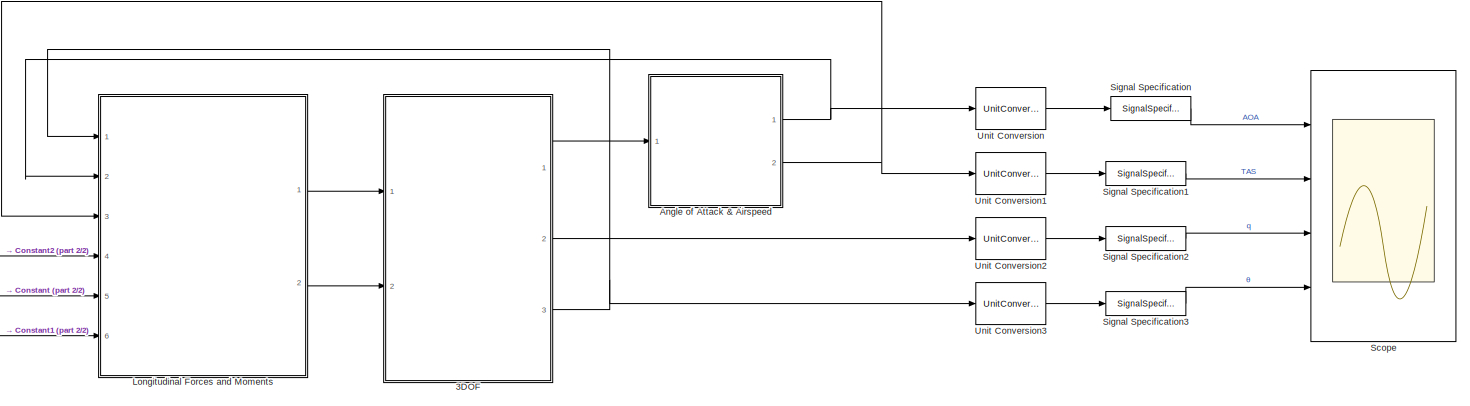
[diagram: root canvas - part 1/2, most of the canvas]
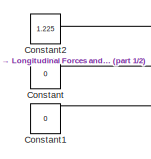
[diagram: root canvas - part 2/2, bottom left region]
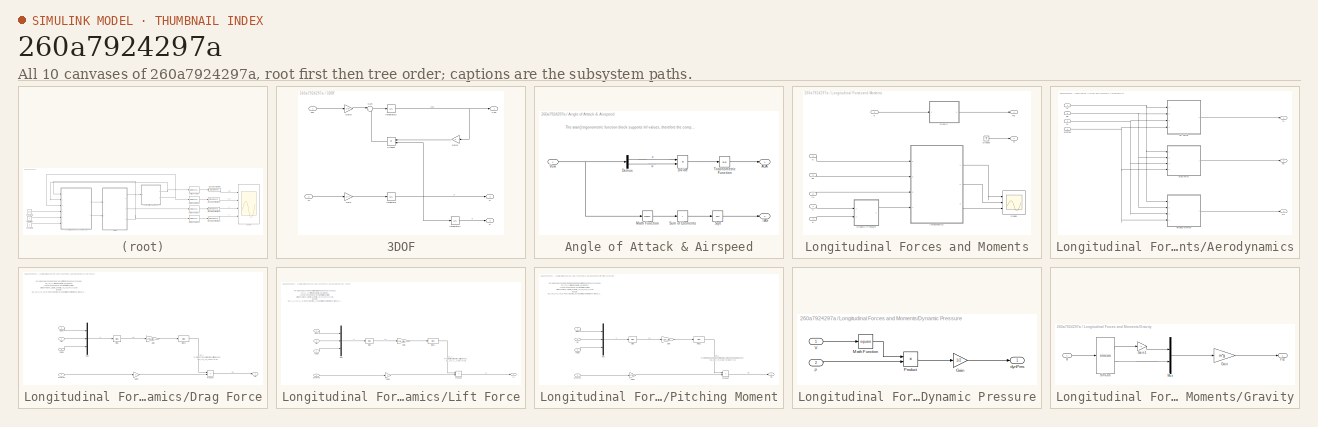
[diagram: thumbnail index - all 10 canvases of the model, root first then tree order]
MODEL slx_260a7924297a
KIND model
CONFIG AbsTol = auto
CONFIG EnableMultiTasking = off
CONFIG FixedStep = auto
CONFIG MaxStep = auto
CONFIG MinStep = auto
CONFIG RelTol = 1e-3
CONFIG SampleTimeConstraint = Unconstrained
CONFIG SolverName = VariableStepAuto
CONFIG StartTime = 0.0
CONFIG StopTime = 10.0
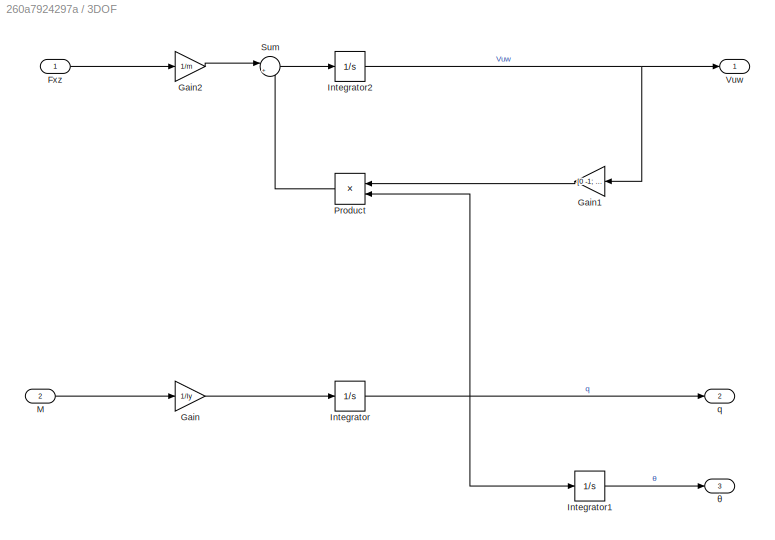
BLOCK [SubSystem] 3DOF
  Ports = [2, 3]
  RequestExecContextInheritance = off
BLOCK [Inport] 3DOF/Fxz
  Unit = N
BLOCK [Gain] 3DOF/Gain
  Gain = 1/Iy
BLOCK [Gain] 3DOF/Gain1
  AttributesFormatString = K = %<Gain>
  Gain = [0 -1; 1 0]
  Multiplication = Matrix(K*u)
  NameLocation = top
BLOCK [Gain] 3DOF/Gain2
  Gain = 1/m
BLOCK [Integrator] 3DOF/Integrator
  Ports = [1, 1]
BLOCK [Integrator] 3DOF/Integrator1
  InitialCondition = theta0
  Ports = [1, 1]
BLOCK [Integrator] 3DOF/Integrator2
  InitialCondition = [u0 w0]
  Ports = [1, 1]
BLOCK [Inport] 3DOF/M
  Port = 2
  Unit = N*m
BLOCK [Product] 3DOF/Product
  NameLocation = top
  Ports = [2, 1]
BLOCK [Sum] 3DOF/Sum
  Inputs = |++
  Ports = [2, 1]
BLOCK [Outport] 3DOF/Vuw
  Unit = m/s
BLOCK [Outport] 3DOF/q
  Port = 2
  Unit = rad/s
BLOCK [Outport] 3DOF/θ
  Port = 3
  Unit = rad
BLOCK [SubSystem] Angle of Attack & Airspeed
  Ports = [1, 2]
  RequestExecContextInheritance = off
BLOCK [Outport] Angle of Attack & Airspeed/AOA
  Unit = rad
BLOCK [Demux] Angle of Attack & Airspeed/Demux
  Outputs = 2
  Ports = [1, 2]
BLOCK [Product] Angle of Attack & Airspeed/Divide
  Inputs = /*
  Ports = [2, 1]
BLOCK [Math] Angle of Attack & Airspeed/Math Function
  Operator = square
  Ports = [1, 1]
BLOCK [Sqrt] Angle of Attack & Airspeed/Sqrt
BLOCK [Sum] Angle of Attack & Airspeed/Sum of Elements
  IconShape = rectangular
  Inputs = +
  Ports = [1, 1]
BLOCK [Outport] Angle of Attack & Airspeed/TAS
  Port = 2
  Unit = m/s
BLOCK [Trigonometry] Angle of Attack & Airspeed/Trigonometric Function
  Operator = atan
  Ports = [1, 1]
BLOCK [Inport] Angle of Attack & Airspeed/Vuw
  Unit = m/s
BLOCK [Constant] Constant
  Value = 0
BLOCK [Constant] Constant1
  Value = 0
BLOCK [Constant] Constant2
  Value = 1.225
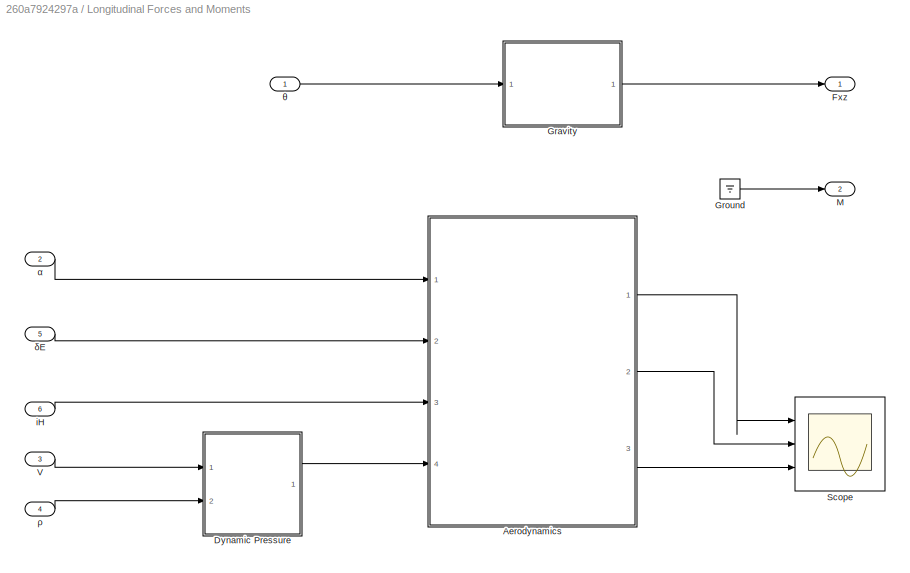
BLOCK [SubSystem] Longitudinal Forces and Moments
  Ports = [6, 2]
  RequestExecContextInheritance = off
BLOCK [SubSystem] Longitudinal Forces and Moments/Aerodynamics
  Ports = [4, 3]
  RequestExecContextInheritance = off
BLOCK [Outport] Longitudinal Forces and Moments/Aerodynamics/D1
  Port = 2
BLOCK [SubSystem] Longitudinal Forces and Moments/Aerodynamics/Drag Force
  Ports = [4, 1]
  RequestExecContextInheritance = off
BLOCK [Bias] Longitudinal Forces and Moments/Aerodynamics/Drag Force/Bias
  AttributesFormatString = b = %<Bias>
  Bias = -[alpha0, elv0, hstab0]
  SaturateOnIntegerOverflow = off
BLOCK [Bias] Longitudinal Forces and Moments/Aerodynamics/Drag Force/Bias1
  Bias = CD_0
  SaturateOnIntegerOverflow = off
BLOCK [Outport] Longitudinal Forces and Moments/Aerodynamics/Drag Force/D1
BLOCK [Gain] Longitudinal Forces and Moments/Aerodynamics/Drag Force/Gain
  AttributesFormatString = K = %<Gain>
  Gain = [CD_alpha, CD_elv, CD_hstab]
  Multiplication = Matrix(K*u) (u vector)
BLOCK [Gain] Longitudinal Forces and Moments/Aerodynamics/Drag Force/Gain1
  Gain = S
BLOCK [Mux] Longitudinal Forces and Moments/Aerodynamics/Drag Force/Mux
  DisplayOption = bar
  Inputs = 3
  Ports = [3, 1]
BLOCK [Product] Longitudinal Forces and Moments/Aerodynamics/Drag Force/Product
  Ports = [2, 1]
BLOCK [Inport] Longitudinal Forces and Moments/Aerodynamics/Drag Force/alpha
BLOCK [Inport] Longitudinal Forces and Moments/Aerodynamics/Drag Force/dynPres
  Port = 4
BLOCK [Inport] Longitudinal Forces and Moments/Aerodynamics/Drag Force/elv
  Port = 2
BLOCK [Inport] Longitudinal Forces and Moments/Aerodynamics/Drag Force/hstab
  Port = 3
BLOCK [Outport] Longitudinal Forces and Moments/Aerodynamics/L1
BLOCK [SubSystem] Longitudinal Forces and Moments/Aerodynamics/Lift Force
  Ports = [4, 1]
  RequestExecContextInheritance = off
BLOCK [Bias] Longitudinal Forces and Moments/Aerodynamics/Lift Force/Bias
  AttributesFormatString = b = %<Bias>
  Bias = -[alpha0, elv0, hstab0]
  SaturateOnIntegerOverflow = off
BLOCK [Bias] Longitudinal Forces and Moments/Aerodynamics/Lift Force/Bias1
  Bias = CL_0
  SaturateOnIntegerOverflow = off
BLOCK [Gain] Longitudinal Forces and Moments/Aerodynamics/Lift Force/Gain
  AttributesFormatString = K = %<Gain>
  Gain = [CL_alpha, CL_elv, CL_hstab]
  Multiplication = Matrix(K*u) (u vector)
BLOCK [Gain] Longitudinal Forces and Moments/Aerodynamics/Lift Force/Gain1
  Gain = S
BLOCK [Outport] Longitudinal Forces and Moments/Aerodynamics/Lift Force/L1
BLOCK [Mux] Longitudinal Forces and Moments/Aerodynamics/Lift Force/Mux
  DisplayOption = bar
  Inputs = 3
  Ports = [3, 1]
BLOCK [Product] Longitudinal Forces and Moments/Aerodynamics/Lift Force/Product
  Ports = [2, 1]
BLOCK [Inport] Longitudinal Forces and Moments/Aerodynamics/Lift Force/alpha
BLOCK [Inport] Longitudinal Forces and Moments/Aerodynamics/Lift Force/dynPres
  Port = 4
BLOCK [Inport] Longitudinal Forces and Moments/Aerodynamics/Lift Force/elv
  Port = 2
BLOCK [Inport] Longitudinal Forces and Moments/Aerodynamics/Lift Force/hstab
  Port = 3
BLOCK [Outport] Longitudinal Forces and Moments/Aerodynamics/M1
  Port = 3
BLOCK [SubSystem] Longitudinal Forces and Moments/Aerodynamics/Pitching Moment
  Ports = [4, 1]
  RequestExecContextInheritance = off
BLOCK [Bias] Longitudinal Forces and Moments/Aerodynamics/Pitching Moment/Bias
  AttributesFormatString = b = %<Bias>
  Bias = -[alpha0, elv0, hstab0]
  SaturateOnIntegerOverflow = off
BLOCK [Bias] Longitudinal Forces and Moments/Aerodynamics/Pitching Moment/Bias1
  Bias = Cm_0
  SaturateOnIntegerOverflow = off
BLOCK [Gain] Longitudinal Forces and Moments/Aerodynamics/Pitching Moment/Gain
  AttributesFormatString = K = %<Gain>
  Gain = [Cm_alpha, Cm_elv, Cm_hstab]
  Multiplication = Matrix(K*u) (u vector)
BLOCK [Gain] Longitudinal Forces and Moments/Aerodynamics/Pitching Moment/Gain1
  AttributesFormatString = K = %<Gain>
  Gain = S*mac
BLOCK [Outport] Longitudinal Forces and Moments/Aerodynamics/Pitching Moment/M1
BLOCK [Mux] Longitudinal Forces and Moments/Aerodynamics/Pitching Moment/Mux
  DisplayOption = bar
  Inputs = 3
  Ports = [3, 1]
BLOCK [Product] Longitudinal Forces and Moments/Aerodynamics/Pitching Moment/Product
  Ports = [2, 1]
BLOCK [Inport] Longitudinal Forces and Moments/Aerodynamics/Pitching Moment/alpha
BLOCK [Inport] Longitudinal Forces and Moments/Aerodynamics/Pitching Moment/dynPres
  Port = 4
BLOCK [Inport] Longitudinal Forces and Moments/Aerodynamics/Pitching Moment/elv
  Port = 2
BLOCK [Inport] Longitudinal Forces and Moments/Aerodynamics/Pitching Moment/hstab
  Port = 3
BLOCK [Inport] Longitudinal Forces and Moments/Aerodynamics/dynPres
  Port = 4
BLOCK [Inport] Longitudinal Forces and Moments/Aerodynamics/iH
  Port = 3
BLOCK [Inport] Longitudinal Forces and Moments/Aerodynamics/α
BLOCK [Inport] Longitudinal Forces and Moments/Aerodynamics/δE
  Port = 2
BLOCK [SubSystem] Longitudinal Forces and Moments/Dynamic Pressure
  Ports = [2, 1]
  RequestExecContextInheritance = off
BLOCK [Gain] Longitudinal Forces and Moments/Dynamic Pressure/Gain
  Gain = 1/2
BLOCK [Math] Longitudinal Forces and Moments/Dynamic Pressure/Math Function
  Operator = square
  Ports = [1, 1]
BLOCK [Product] Longitudinal Forces and Moments/Dynamic Pressure/Product
  Ports = [2, 1]
BLOCK [Inport] Longitudinal Forces and Moments/Dynamic Pressure/V
BLOCK [Outport] Longitudinal Forces and Moments/Dynamic Pressure/dynPres
BLOCK [Inport] Longitudinal Forces and Moments/Dynamic Pressure/ρ
  Port = 2
BLOCK [Outport] Longitudinal Forces and Moments/Fxz
  Unit = N
BLOCK [SubSystem] Longitudinal Forces and Moments/Gravity
  Ports = [1, 1]
  RequestExecContextInheritance = off
BLOCK [Outport] Longitudinal Forces and Moments/Gravity/Fxz
BLOCK [Gain] Longitudinal Forces and Moments/Gravity/Gain
  Gain = m*g
BLOCK [Gain] Longitudinal Forces and Moments/Gravity/Gain1
  Gain = -1
BLOCK [Mux] Longitudinal Forces and Moments/Gravity/Mux
  DisplayOption = bar
  Inputs = 2
  Ports = [2, 1]
BLOCK [Trigonometry] Longitudinal Forces and Moments/Gravity/SinCos
  Operator = sincos
  Ports = [1, 2]
BLOCK [Inport] Longitudinal Forces and Moments/Gravity/θ
BLOCK [Ground] Longitudinal Forces and Moments/Ground
BLOCK [Outport] Longitudinal Forces and Moments/M
  Port = 2
  Unit = N*m
BLOCK [Scope] Longitudinal Forces and Moments/Scope
  Floating = off
  NumInputPorts = 3
  Ports = [3]
  ScopeSpecificationString = Simulink.scopes.TimeScopeBlockCfg('CurrentConfiguration', extmgr.ConfigurationSet(extmgr.Configuration('Core','General UI',true),extmgr.Configuration('Core','Source UI',true),extmgr.Configuration('Sources','WiredSimulink',true,'DataLoggingVariableName','ScopeData1'),extmgr.Configuration('Visuals','Time Domain',true,'SerializedDisplays',{struct('MinYLimReal','-150938.94276','MaxYLimReal','2082910.5...<+1991ch>
BLOCK [Inport] Longitudinal Forces and Moments/V
  Port = 3
  Unit = m/s
BLOCK [Inport] Longitudinal Forces and Moments/iH
  Port = 6
  Unit = rad
BLOCK [Inport] Longitudinal Forces and Moments/α
  Port = 2
  Unit = rad
BLOCK [Inport] Longitudinal Forces and Moments/δE
  Port = 5
  Unit = rad
BLOCK [Inport] Longitudinal Forces and Moments/θ
  Unit = rad
BLOCK [Inport] Longitudinal Forces and Moments/ρ
  Port = 4
  Unit = kg/m^3
BLOCK [Scope] Scope
  Floating = off
  NumInputPorts = 4
  Ports = [4]
  ScopeSpecificationString = Simulink.scopes.TimeScopeBlockCfg('CurrentConfiguration', extmgr.ConfigurationSet(extmgr.Configuration('Core','General UI',true),extmgr.Configuration('Core','Source UI',true),extmgr.Configuration('Sources','WiredSimulink',true),extmgr.Configuration('Visuals','Time Domain',true,'SerializedDisplays',{struct('MinYLimReal','-0.47816','MaxYLimReal','31.30342','YLabelReal','','MinYLimMag','0.00000','Max...<+3637ch>
BLOCK [SignalSpecification] Signal Specification
  Unit = deg
BLOCK [SignalSpecification] Signal Specification1
  Unit = kn
BLOCK [SignalSpecification] Signal Specification2
  Unit = deg/s
BLOCK [SignalSpecification] Signal Specification3
  Unit = deg
BLOCK [UnitConversion] Unit Conversion
  OutputType = Inherit: Inherit via back propagation
BLOCK [UnitConversion] Unit Conversion1
  OutputType = Inherit: Inherit via back propagation
BLOCK [UnitConversion] Unit Conversion2
  OutputType = Inherit: Inherit via back propagation
BLOCK [UnitConversion] Unit Conversion3
ANNOTATION Angle of Attack & Airspeed: The atan() trigonometric function block supports Inf values, therefore the computed value for the angle of attack (AOA) will still be valid for zero longitudinal aircraft speed.
ANNOTATION Longitudinal Forces and Moments/Aerodynamics/Drag Force: For a given Mach number, the drag coefficient can be expressed as $C_{D_1} = f \left(\alpha, \delta_E, i_H \right)$ . A Taylor expansion around the initial condition $[\alpha=\alpha_0, \delta_E = \delta_{E_0}, i_H = i_{H_0}]$ leads to $C_{D_1} = C_{D_0}+\frac{\partial C_D}{\partial \alpha} \left( \alpha-\alpha_0 \right)+\frac{\partial C_D}{\partial \delta_E} \left( \delta_E-\delta_{E_0} \right)+\f...<+469ch>
ANNOTATION Longitudinal Forces and Moments/Aerodynamics/Drag Force: From the drag coefficient the A/C lift is given by: $D_1 = C_{D_1} \bar{q} S$
ANNOTATION Longitudinal Forces and Moments/Aerodynamics/Lift Force: For a given Mach number, the lift coefficient can be expressed as $C_{L_1} = f \left(\alpha, \delta_E, i_H \right)$ . A Taylor expansion around the initial condition $[\alpha=\alpha_0, \delta_E = \delta_{E_0}, i_H = i_{H_0}]$ leads to $C_{L_1} = C_{L_0}+\frac{\partial C_L}{\partial \alpha} \left( \alpha-\alpha_0 \right)+\frac{\partial C_L}{\partial \delta_E} \left( \delta_E-\delta_{E_0} \right)+\f...<+469ch>
ANNOTATION Longitudinal Forces and Moments/Aerodynamics/Lift Force: From the lift coefficient the A/C lift is given by: $L_1 = C_{L_1} \bar{q} S$
ANNOTATION Longitudinal Forces and Moments/Aerodynamics/Pitching Moment: For a given Mach number, the pitching moment coefficient can be expressed as $C_{m_1} = f \left(\alpha, \delta_E, i_H \right)$ . A Taylor expansion around the initial condition $[\alpha=\alpha_0, \delta_E = \delta_{E_0}, i_H = i_{H_0}]$ leads to $C_{m_1} = C_{m_0}+\frac{\partial C_m}{\partial \alpha} \left( \alpha-\alpha_0 \right)+\frac{\partial C_m}{\partial \delta_E} \left( \delta_E-\delta_{E_0}...<+524ch>
ANNOTATION Longitudinal Forces and Moments/Aerodynamics/Pitching Moment: From the pitching moment coefficient the A/C pitching moment is given by: $M_1 = C_{m_1} \bar{q} S \bar{c}$
LINE 3DOF/Fxz:1 -> 3DOF/Gain2:1
LINE 3DOF/Gain1:1 -> 3DOF/Product:1
LINE 3DOF/Gain2:1 -> 3DOF/Sum:1
LINE 3DOF/Gain:1 -> 3DOF/Integrator:1
LINE 3DOF/Integrator1:1 -> 3DOF/θ:1
NET 3DOF/Integrator2:1 -> 3DOF/Gain1:1, 3DOF/Vuw:1
NET 3DOF/Integrator:1 -> 3DOF/Integrator1:1, 3DOF/Product:2, 3DOF/q:1
LINE 3DOF/M:1 -> 3DOF/Gain:1
LINE 3DOF/Product:1 -> 3DOF/Sum:2
LINE 3DOF/Sum:1 -> 3DOF/Integrator2:1
LINE 3DOF:1 -> Angle of Attack & Airspeed:1
LINE 3DOF:2 -> Unit Conversion2:1
NET 3DOF:3 -> Longitudinal Forces and Moments:1, Unit Conversion3:1
LINE Angle of Attack & Airspeed/Demux:1 -> Angle of Attack & Airspeed/Divide:1
LINE Angle of Attack & Airspeed/Demux:2 -> Angle of Attack & Airspeed/Divide:2
LINE Angle of Attack & Airspeed/Divide:1 -> Angle of Attack & Airspeed/Trigonometric Function:1
LINE Angle of Attack & Airspeed/Math Function:1 -> Angle of Attack & Airspeed/Sum of Elements:1
LINE Angle of Attack & Airspeed/Sqrt:1 -> Angle of Attack & Airspeed/TAS:1
LINE Angle of Attack & Airspeed/Sum of Elements:1 -> Angle of Attack & Airspeed/Sqrt:1
LINE Angle of Attack & Airspeed/Trigonometric Function:1 -> Angle of Attack & Airspeed/AOA:1
NET Angle of Attack & Airspeed/Vuw:1 -> Angle of Attack & Airspeed/Demux:1, Angle of Attack & Airspeed/Math Function:1
NET Angle of Attack & Airspeed:1 -> Longitudinal Forces and Moments:2, Unit Conversion:1
NET Angle of Attack & Airspeed:2 -> Longitudinal Forces and Moments:3, Unit Conversion1:1
LINE Constant1:1 -> Longitudinal Forces and Moments:6
LINE Constant2:1 -> Longitudinal Forces and Moments:4
LINE Constant:1 -> Longitudinal Forces and Moments:5
LINE Longitudinal Forces and Moments/Aerodynamics/Drag Force/Bias1:1 -> Longitudinal Forces and Moments/Aerodynamics/Drag Force/Product:1
LINE Longitudinal Forces and Moments/Aerodynamics/Drag Force/Bias:1 -> Longitudinal Forces and Moments/Aerodynamics/Drag Force/Gain:1
LINE Longitudinal Forces and Moments/Aerodynamics/Drag Force/Gain1:1 -> Longitudinal Forces and Moments/Aerodynamics/Drag Force/Product:2
LINE Longitudinal Forces and Moments/Aerodynamics/Drag Force/Gain:1 -> Longitudinal Forces and Moments/Aerodynamics/Drag Force/Bias1:1
LINE Longitudinal Forces and Moments/Aerodynamics/Drag Force/Mux:1 -> Longitudinal Forces and Moments/Aerodynamics/Drag Force/Bias:1
LINE Longitudinal Forces and Moments/Aerodynamics/Drag Force/Product:1 -> Longitudinal Forces and Moments/Aerodynamics/Drag Force/D1:1
LINE Longitudinal Forces and Moments/Aerodynamics/Drag Force/alpha:1 -> Longitudinal Forces and Moments/Aerodynamics/Drag Force/Mux:1
LINE Longitudinal Forces and Moments/Aerodynamics/Drag Force/dynPres:1 -> Longitudinal Forces and Moments/Aerodynamics/Drag Force/Gain1:1
LINE Longitudinal Forces and Moments/Aerodynamics/Drag Force/elv:1 -> Longitudinal Forces and Moments/Aerodynamics/Drag Force/Mux:2
LINE Longitudinal Forces and Moments/Aerodynamics/Drag Force/hstab:1 -> Longitudinal Forces and Moments/Aerodynamics/Drag Force/Mux:3
LINE Longitudinal Forces and Moments/Aerodynamics/Drag Force:1 -> Longitudinal Forces and Moments/Aerodynamics/D1:1
LINE Longitudinal Forces and Moments/Aerodynamics/Lift Force/Bias1:1 -> Longitudinal Forces and Moments/Aerodynamics/Lift Force/Product:1
LINE Longitudinal Forces and Moments/Aerodynamics/Lift Force/Bias:1 -> Longitudinal Forces and Moments/Aerodynamics/Lift Force/Gain:1
LINE Longitudinal Forces and Moments/Aerodynamics/Lift Force/Gain1:1 -> Longitudinal Forces and Moments/Aerodynamics/Lift Force/Product:2
LINE Longitudinal Forces and Moments/Aerodynamics/Lift Force/Gain:1 -> Longitudinal Forces and Moments/Aerodynamics/Lift Force/Bias1:1
LINE Longitudinal Forces and Moments/Aerodynamics/Lift Force/Mux:1 -> Longitudinal Forces and Moments/Aerodynamics/Lift Force/Bias:1
LINE Longitudinal Forces and Moments/Aerodynamics/Lift Force/Product:1 -> Longitudinal Forces and Moments/Aerodynamics/Lift Force/L1:1
LINE Longitudinal Forces and Moments/Aerodynamics/Lift Force/alpha:1 -> Longitudinal Forces and Moments/Aerodynamics/Lift Force/Mux:1
LINE Longitudinal Forces and Moments/Aerodynamics/Lift Force/dynPres:1 -> Longitudinal Forces and Moments/Aerodynamics/Lift Force/Gain1:1
LINE Longitudinal Forces and Moments/Aerodynamics/Lift Force/elv:1 -> Longitudinal Forces and Moments/Aerodynamics/Lift Force/Mux:2
LINE Longitudinal Forces and Moments/Aerodynamics/Lift Force/hstab:1 -> Longitudinal Forces and Moments/Aerodynamics/Lift Force/Mux:3
LINE Longitudinal Forces and Moments/Aerodynamics/Lift Force:1 -> Longitudinal Forces and Moments/Aerodynamics/L1:1
LINE Longitudinal Forces and Moments/Aerodynamics/Pitching Moment/Bias1:1 -> Longitudinal Forces and Moments/Aerodynamics/Pitching Moment/Product:1
LINE Longitudinal Forces and Moments/Aerodynamics/Pitching Moment/Bias:1 -> Longitudinal Forces and Moments/Aerodynamics/Pitching Moment/Gain:1
LINE Longitudinal Forces and Moments/Aerodynamics/Pitching Moment/Gain1:1 -> Longitudinal Forces and Moments/Aerodynamics/Pitching Moment/Product:2
LINE Longitudinal Forces and Moments/Aerodynamics/Pitching Moment/Gain:1 -> Longitudinal Forces and Moments/Aerodynamics/Pitching Moment/Bias1:1
LINE Longitudinal Forces and Moments/Aerodynamics/Pitching Moment/Mux:1 -> Longitudinal Forces and Moments/Aerodynamics/Pitching Moment/Bias:1
LINE Longitudinal Forces and Moments/Aerodynamics/Pitching Moment/Product:1 -> Longitudinal Forces and Moments/Aerodynamics/Pitching Moment/M1:1
LINE Longitudinal Forces and Moments/Aerodynamics/Pitching Moment/alpha:1 -> Longitudinal Forces and Moments/Aerodynamics/Pitching Moment/Mux:1
LINE Longitudinal Forces and Moments/Aerodynamics/Pitching Moment/dynPres:1 -> Longitudinal Forces and Moments/Aerodynamics/Pitching Moment/Gain1:1
LINE Longitudinal Forces and Moments/Aerodynamics/Pitching Moment/elv:1 -> Longitudinal Forces and Moments/Aerodynamics/Pitching Moment/Mux:2
LINE Longitudinal Forces and Moments/Aerodynamics/Pitching Moment/hstab:1 -> Longitudinal Forces and Moments/Aerodynamics/Pitching Moment/Mux:3
LINE Longitudinal Forces and Moments/Aerodynamics/Pitching Moment:1 -> Longitudinal Forces and Moments/Aerodynamics/M1:1
NET Longitudinal Forces and Moments/Aerodynamics/dynPres:1 -> Longitudinal Forces and Moments/Aerodynamics/Drag Force:4, Longitudinal Forces and Moments/Aerodynamics/Lift Force:4, Longitudinal Forces and Moments/Aerodynamics/Pitching Moment:4
NET Longitudinal Forces and Moments/Aerodynamics/iH:1 -> Longitudinal Forces and Moments/Aerodynamics/Drag Force:3, Longitudinal Forces and Moments/Aerodynamics/Lift Force:3, Longitudinal Forces and Moments/Aerodynamics/Pitching Moment:3
NET Longitudinal Forces and Moments/Aerodynamics/α:1 -> Longitudinal Forces and Moments/Aerodynamics/Drag Force:1, Longitudinal Forces and Moments/Aerodynamics/Lift Force:1, Longitudinal Forces and Moments/Aerodynamics/Pitching Moment:1
NET Longitudinal Forces and Moments/Aerodynamics/δE:1 -> Longitudinal Forces and Moments/Aerodynamics/Drag Force:2, Longitudinal Forces and Moments/Aerodynamics/Lift Force:2, Longitudinal Forces and Moments/Aerodynamics/Pitching Moment:2
LINE Longitudinal Forces and Moments/Aerodynamics:1 -> Longitudinal Forces and Moments/Scope:1
LINE Longitudinal Forces and Moments/Aerodynamics:2 -> Longitudinal Forces and Moments/Scope:2
LINE Longitudinal Forces and Moments/Aerodynamics:3 -> Longitudinal Forces and Moments/Scope:3
LINE Longitudinal Forces and Moments/Dynamic Pressure/Gain:1 -> Longitudinal Forces and Moments/Dynamic Pressure/dynPres:1
LINE Longitudinal Forces and Moments/Dynamic Pressure/Math Function:1 -> Longitudinal Forces and Moments/Dynamic Pressure/Product:1
LINE Longitudinal Forces and Moments/Dynamic Pressure/Product:1 -> Longitudinal Forces and Moments/Dynamic Pressure/Gain:1
LINE Longitudinal Forces and Moments/Dynamic Pressure/V:1 -> Longitudinal Forces and Moments/Dynamic Pressure/Math Function:1
LINE Longitudinal Forces and Moments/Dynamic Pressure/ρ:1 -> Longitudinal Forces and Moments/Dynamic Pressure/Product:2
LINE Longitudinal Forces and Moments/Dynamic Pressure:1 -> Longitudinal Forces and Moments/Aerodynamics:4
LINE Longitudinal Forces and Moments/Gravity/Gain1:1 -> Longitudinal Forces and Moments/Gravity/Mux:1
LINE Longitudinal Forces and Moments/Gravity/Gain:1 -> Longitudinal Forces and Moments/Gravity/Fxz:1
LINE Longitudinal Forces and Moments/Gravity/Mux:1 -> Longitudinal Forces and Moments/Gravity/Gain:1
LINE Longitudinal Forces and Moments/Gravity/SinCos:1 -> Longitudinal Forces and Moments/Gravity/Gain1:1
LINE Longitudinal Forces and Moments/Gravity/SinCos:2 -> Longitudinal Forces and Moments/Gravity/Mux:2
LINE Longitudinal Forces and Moments/Gravity/θ:1 -> Longitudinal Forces and Moments/Gravity/SinCos:1
LINE Longitudinal Forces and Moments/Gravity:1 -> Longitudinal Forces and Moments/Fxz:1
LINE Longitudinal Forces and Moments/Ground:1 -> Longitudinal Forces and Moments/M:1
LINE Longitudinal Forces and Moments/V:1 -> Longitudinal Forces and Moments/Dynamic Pressure:1
LINE Longitudinal Forces and Moments/iH:1 -> Longitudinal Forces and Moments/Aerodynamics:3
LINE Longitudinal Forces and Moments/α:1 -> Longitudinal Forces and Moments/Aerodynamics:1
LINE Longitudinal Forces and Moments/δE:1 -> Longitudinal Forces and Moments/Aerodynamics:2
LINE Longitudinal Forces and Moments/θ:1 -> Longitudinal Forces and Moments/Gravity:1
LINE Longitudinal Forces and Moments/ρ:1 -> Longitudinal Forces and Moments/Dynamic Pressure:2
LINE Longitudinal Forces and Moments:1 -> 3DOF:1
LINE Longitudinal Forces and Moments:2 -> 3DOF:2
LINE Signal Specification1:1 -> Scope:2
LINE Signal Specification2:1 -> Scope:3
LINE Signal Specification3:1 -> Scope:4
LINE Signal Specification:1 -> Scope:1
LINE Unit Conversion1:1 -> Signal Specification1:1
LINE Unit Conversion2:1 -> Signal Specification2:1
LINE Unit Conversion3:1 -> Signal Specification3:1
LINE Unit Conversion:1 -> Signal Specification:1
note: NET lines group one-source signal fan-out (src -> all destinations, sorted); 1:1 wires keep LINE
